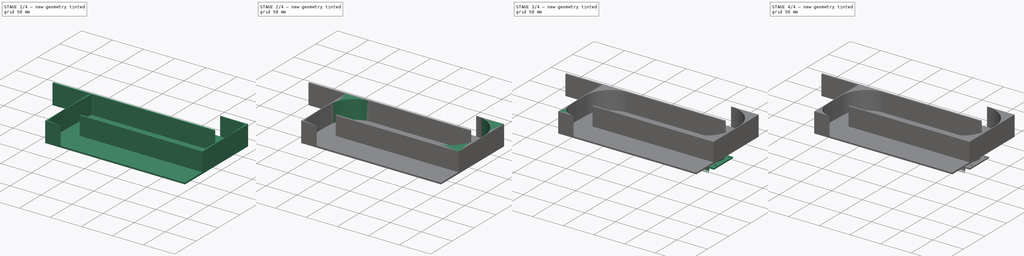
[diagram: build sequence overview — one tinted view per stage of 4, left to right]
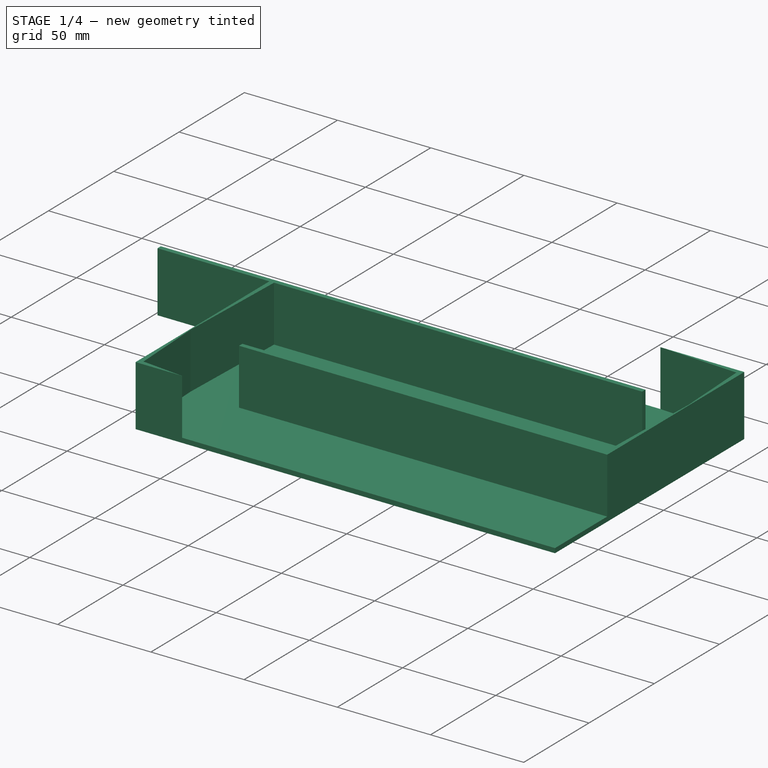
[diagram: stage 1 of 4 — iso view after this stage's code; geometry added in this stage tinted green]
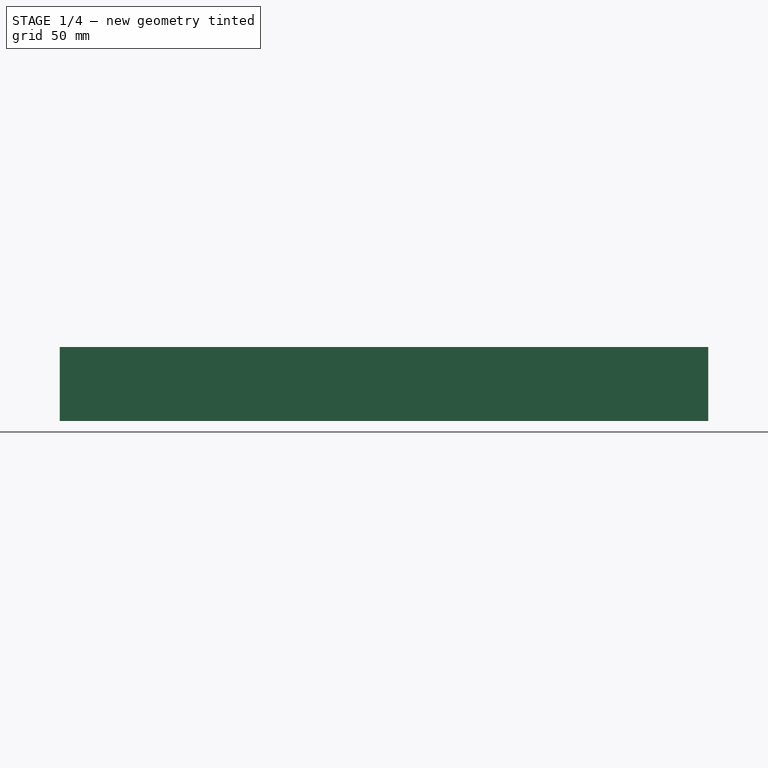
[diagram: stage 1 of 4 — front view after this stage's code; geometry added in this stage tinted green]
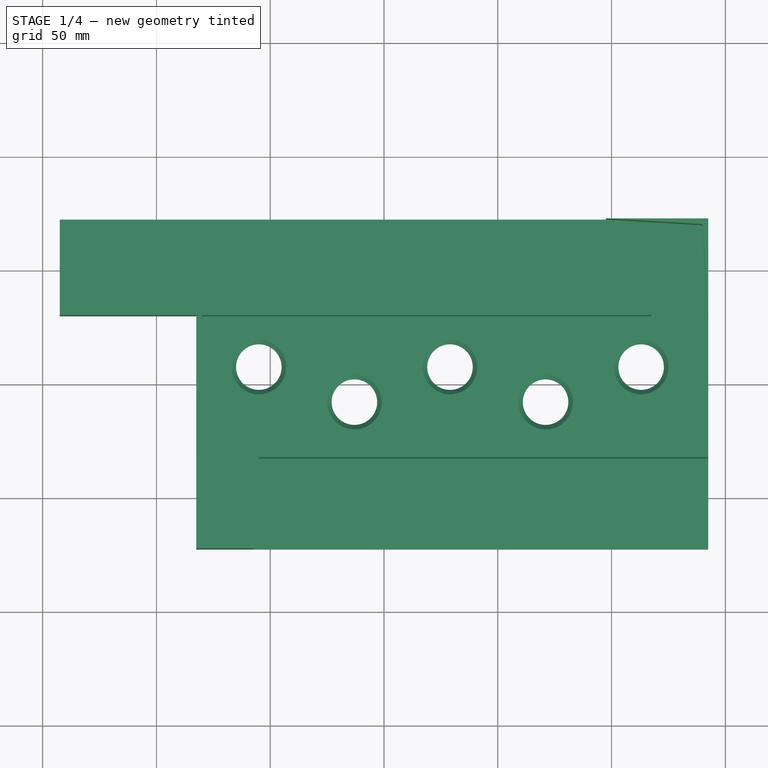
[diagram: stage 1 of 4 — top view after this stage's code; geometry added in this stage tinted green]
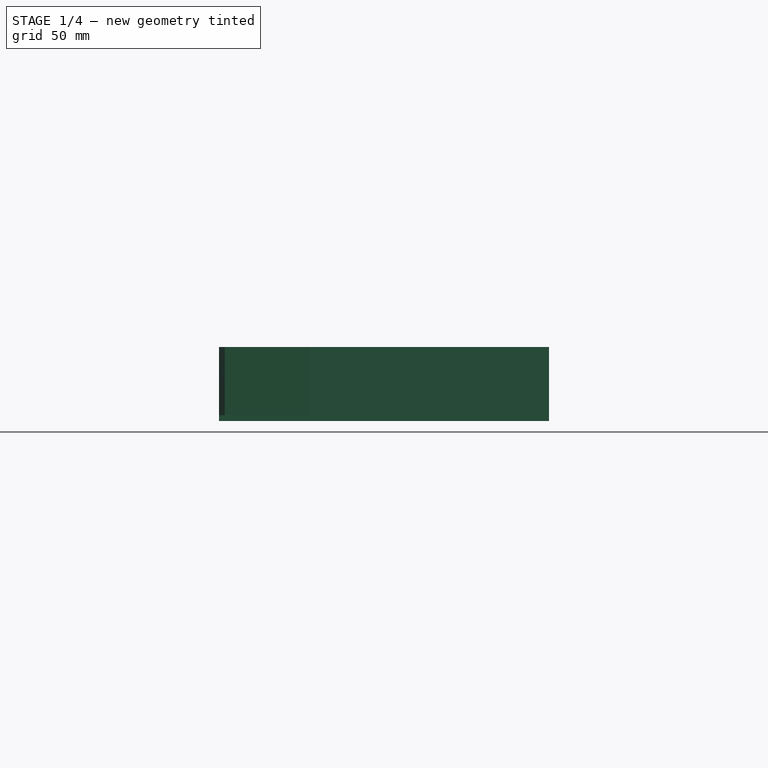
[diagram: stage 1 of 4 — right view after this stage's code; geometry added in this stage tinted green]
FCSTD DOCUMENT  (FreeCAD 0.16R6712 (Git))
Label: piso_intermedio
License: All rights reserved
LicenseURL: http://en.wikipedia.org/wiki/All_rights_reserved
objects: Part::Feature×10, Part::MultiFuse×5, App::FeaturePython×5, Part::Fillet×5, Sketcher::SketchObject×3, PartDesign::Pad×2, PartDesign::Pocket×1, Part::Chamfer×1
note: 30 computed .brp shape members not serialized (recipe doc carries the construction recipe); baked Part::Feature solids carry a one-line shape summary decoded from their .brp

FEATURE [Sketcher::SketchObject] Sketch
  sketch-geometry (6):
    g0: LineSegment StartX=-142.5 StartY=72.5 StartZ=0 EndX=142.5 EndY=72.5 EndZ=0
    g1: LineSegment StartX=142.5 StartY=72.5 StartZ=0 EndX=142.5 EndY=-72.5 EndZ=0
    g2: LineSegment StartX=142.5 StartY=-72.5 StartZ=0 EndX=-82.5 EndY=-72.5 EndZ=0
    g3: LineSegment StartX=-142.5 StartY=30 StartZ=0 EndX=-142.5 EndY=72.5 EndZ=0
    g4: LineSegment StartX=-142.5 StartY=30 StartZ=0 EndX=-82.5 EndY=30 EndZ=0
    g5: LineSegment StartX=-82.5 StartY=30 StartZ=0 EndX=-82.5 EndY=-72.5 EndZ=0
  constraints (18):
    c: Coincident(g0,g1)
    c: Coincident(g1,g2)
    c: Coincident(g3,g0)
    c: Horizontal(g0)
    c: Horizontal(g2)
    c: Vertical(g1)
    c: Vertical(g3)
    c: Horizontal(g4)
    c: Coincident(g5,g4)
    c: Vertical(g5)
    c: Coincident(g3,g4)
    c: Coincident(g2,g5)
    c: DistanceX(g2,g2) = 225
    c: DistanceY(g5,g5) = 102.5
    c: Symmetric(g0,g0,g-2)
    c: Symmetric(g0,g1,g-1)
    c: DistanceX(g4,g4) = 60
    c: DistanceY(g1,g1) = 145
FEATURE [PartDesign::Pad] Pad
  Length = 2.5
  Length2 = 100
  Sketch = -> Sketch
  Type = 0
FEATURE [App::FeaturePython] planeConstraint05  # a2plus constraint (typed FeaturePython)
  Object1 = Fusion004
  Object2 = Pad
  SubElement1 = Face7
  SubElement2 = Face8
  Type = plane
  directionConstraint = 1
  offset = 0
FEATURE [Sketcher::SketchObject] Sketch002
  Placement = pos=(0,0,2.5) rot=(0,0,1;0rad)
  Support = -> Pad [Face8]
  sketch-geometry (11):
    g0: Circle CenterX=-55 CenterY=7.7 CenterZ=0 NormalX=0 NormalY=0 NormalZ=1 Radius=10
    g1: Circle CenterX=-13 CenterY=-7.7 CenterZ=0 NormalX=0 NormalY=0 NormalZ=1 Radius=10
    g2: Circle CenterX=29 CenterY=7.7 CenterZ=0 NormalX=0 NormalY=0 NormalZ=1 Radius=10
    g3: Circle CenterX=71 CenterY=-7.7 CenterZ=0 NormalX=0 NormalY=0 NormalZ=1 Radius=10
    g4: Circle CenterX=113 CenterY=7.7 CenterZ=0 NormalX=0 NormalY=0 NormalZ=1 Radius=10
    g5: LineSegment [constr] StartX=-55 StartY=0 StartZ=0 EndX=113 EndY=0 EndZ=0
    g6: LineSegment [constr] StartX=113 StartY=7.7 StartZ=0 EndX=113 EndY=0 EndZ=0
    g7: LineSegment [constr] StartX=-13 StartY=-7.7 StartZ=0 EndX=-13 EndY=0 EndZ=0
    g8: LineSegment [constr] StartX=29 StartY=7.7 StartZ=0 EndX=29 EndY=0 EndZ=0
    g9: LineSegment [constr] StartX=71 StartY=-7.7 StartZ=0 EndX=71 EndY=0 EndZ=0
    g10: LineSegment [constr] StartX=-55 StartY=7.7 StartZ=0 EndX=-55 EndY=0 EndZ=0
  constraints (32):
    c: Radius(g4) = 10
    c: Equal(g3,g4)
    c: Equal(g4,g2)
    c: Equal(g2,g1)
    c: Equal(g1,g0)
    c: DistanceX(g3,g4) = 42
    c: DistanceX(g2,g3) = 42
    c: DistanceX(g0,g1) = 42
    c: DistanceX(g-1,g2) = 29
    c: DistanceX(g1,g2) = 42
    c: PointOnObject(g5,g-1)
    c: PointOnObject(g5,g-1)
    c: Coincident(g6,g4)
    c: Coincident(g6,g5)
    c: Vertical(g6)
    c: Coincident(g7,g1)
    c: PointOnObject(g7,g5)
    c: Vertical(g7)
    c: Coincident(g8,g2)
    c: PointOnObject(g8,g5)
    c: Vertical(g8)
    c: Coincident(g9,g3)
    c: PointOnObject(g9,g5)
    c: Vertical(g9)
    c: Equal(g6,g9)
    c: Equal(g9,g8)
    c: Equal(g8,g7)
    c: Coincident(g10,g0)
    c: Coincident(g10,g5)
    c: Vertical(g10)
    c: Equal(g10,g6)
    c: DistanceY(g6,g6) = 7.7
FEATURE [PartDesign::Pocket] Pocket
  Length = 2.5
  Sketch = -> Sketch002
  Type = 0
FEATURE [Sketcher::SketchObject] Sketch001
  Placement = pos=(0,0,2.5) rot=(0,0,1;0rad)
  Support = -> Pocket [Face5]
  sketch-geometry (22):
    g0: LineSegment StartX=-142.5 StartY=32.5 StartZ=0 EndX=117.5 EndY=32.5 EndZ=0
    g1: LineSegment StartX=117.5 StartY=32.5 StartZ=0 EndX=117.5 EndY=30 EndZ=0
    g2: LineSegment StartX=-80 StartY=30 StartZ=0 EndX=117.5 EndY=30 EndZ=0
    g3: LineSegment StartX=-80 StartY=-70 StartZ=0 EndX=-57.5 EndY=-72.5 EndZ=0
    g4: LineSegment StartX=-82.5 StartY=-72.5 StartZ=0 EndX=-57.5 EndY=-72.5 EndZ=0
    g5: LineSegment StartX=-55 StartY=-30 StartZ=0 EndX=140 EndY=-30 EndZ=0
    g6: LineSegment StartX=142.5 StartY=-32.5 StartZ=0 EndX=-55 EndY=-32.5 EndZ=0
    g7: LineSegment StartX=-55 StartY=-32.5 StartZ=0 EndX=-55 EndY=-30 EndZ=0
    g8: LineSegment StartX=142.5 StartY=-32.5 StartZ=0 EndX=142.5 EndY=30.5 EndZ=0
    g9: LineSegment StartX=97.5 StartY=72.5 StartZ=0 EndX=142.5 EndY=72.5 EndZ=0
    g10: LineSegment StartX=142.5 StartY=72.5 StartZ=0 EndX=142.5 EndY=30.5 EndZ=0
    g11: LineSegment StartX=140 StartY=70 StartZ=0 EndX=97.5 EndY=72.5 EndZ=0
    g12: LineSegment StartX=-80 StartY=-70 StartZ=0 EndX=-82 EndY=-31 EndZ=0
    g13: LineSegment StartX=-82 StartY=-31 StartZ=0 EndX=-80 EndY=30 EndZ=0
    g14: GeomPoint [constr] X=-82.5 Y=-31 Z=0
    g15: LineSegment StartX=-82.5 StartY=30 StartZ=0 EndX=-142.5 EndY=30 EndZ=0
    g16: LineSegment StartX=-142.5 StartY=30 StartZ=0 EndX=-142.5 EndY=32.5 EndZ=0
    g17: LineSegment StartX=-82.5 StartY=30 StartZ=0 EndX=-82.5 EndY=-72.5 EndZ=0
    g18: LineSegment StartX=140 StartY=-30 StartZ=0 EndX=142 EndY=30.5 EndZ=0
    g19: LineSegment StartX=140 StartY=70 StartZ=0 EndX=142 EndY=30.5 EndZ=0
    g20: LineSegment [constr] StartX=142 StartY=30.5 StartZ=0 EndX=142.5 EndY=30.5 EndZ=0
    g21: LineSegment [constr] StartX=-82.5 StartY=-31 StartZ=0 EndX=-82 EndY=-31 EndZ=0
  constraints (63):
    c: Horizontal(g0)
    c: Coincident(g1,g0)
    c: Coincident(g2,g1)
    c: Horizontal(g2)
    c: Vertical(g1)
    c: DistanceY(g1,g1) = 2.5
    c: Horizontal(g4)
    c: DistanceX(g4,g4) = 25
    c: DistanceX(g2,g-1) = 80
    c: DistanceY(g-1,g2) = 30
    c: DistanceY(g4,g3) = 2.5
    c: Coincident(g3,g4)
    c: Coincident(g6,g7)
    c: Coincident(g7,g5)
    c: Horizontal(g5)
    c: Horizontal(g6)
    c: Vertical(g7)
    c: Equal(g7,g1)
    c: DistanceY(g5,g-1) = 30
    c: DistanceX(g5,g-1) = 55
    c: DistanceX(g6,g6) = 197.5
    c: Coincident(g6,g8)
    c: DistanceX(g5,g6) = 2.5
    c: DistanceY(g8,g8) = 63
    c: Vertical(g8)
    c: Horizontal(g9)
    c: Coincident(g10,g9)
    c: Vertical(g10)
    c: DistanceY(g-1,g11) = 70
    c: DistanceX(g9,g9) = 45
    c: DistanceX(g11,g11) = 42.5
    c: Coincident(g11,g9)
    c: DistanceY(g11,g9) = 2.5
    c: Coincident(g10,g8)
    c: DistanceX(g4,g3) = 2.5
    c: Coincident(g12,g3)
    c: Coincident(g13,g12)
    c: Coincident(g13,g2)
    c: DistanceY(g4,g14) = 41.5
    c: DistanceX(g14,g12) = 0.5
    c: Horizontal(g15)
    c: Coincident(g16,g15)
    c: Vertical(g16)
    c: Equal(g16,g1)
    c: Coincident(g17,g15)
    c: Coincident(g17,g4)
    c: Vertical(g17)
    c: PointOnObject(g14,g17)
    c: DistanceX(g15,g2) = 2.5
    c: DistanceY(g4,g15) = 102.5
    c: Coincident(g16,g0)
    c: DistanceX(g0,g0) = 260
    c: Equal(g2,g6)
    c: Coincident(g18,g5)
    c: Coincident(g19,g11)
    c: Coincident(g18,g19)
    c: DistanceX(g18,g8) = 0.5
    c: Coincident(g20,g18)
    c: Coincident(g20,g8)
    c: Horizontal(g20)
    c: Coincident(g21,g14)
    c: Coincident(g21,g12)
    c: Horizontal(g21)
FEATURE [PartDesign::Pad] Pad001
  Length = 30
  Length2 = 100
  Sketch = -> Sketch001
  Type = 0
FEATURE [Part::Chamfer] Chamfer
  Base = -> Pad001
  Edges = 5 edges r=2: [Edge29,Edge31,Edge33,Edge35,Edge37]
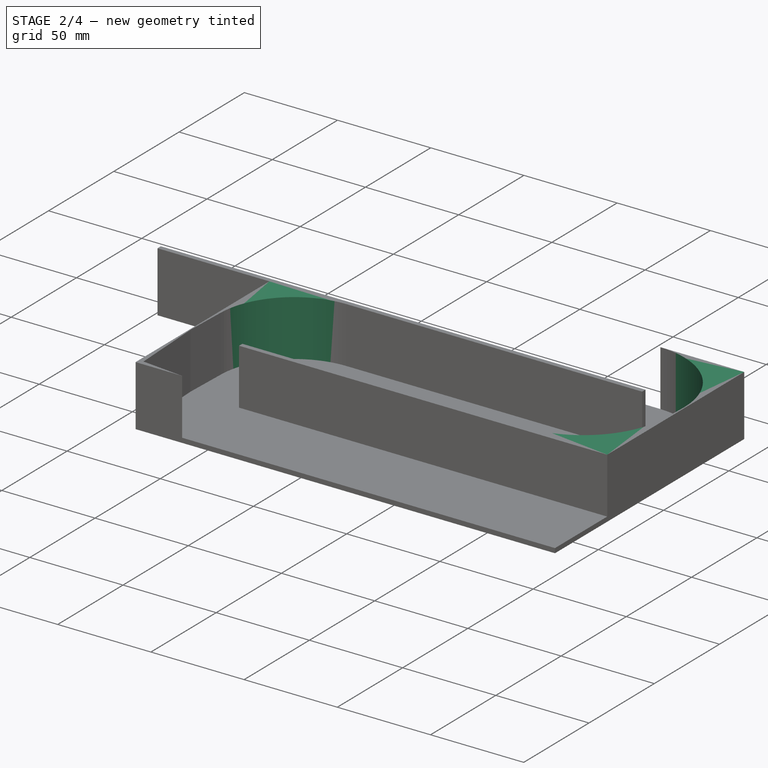
[diagram: stage 2 of 4 — iso view after this stage's code; geometry added in this stage tinted green]
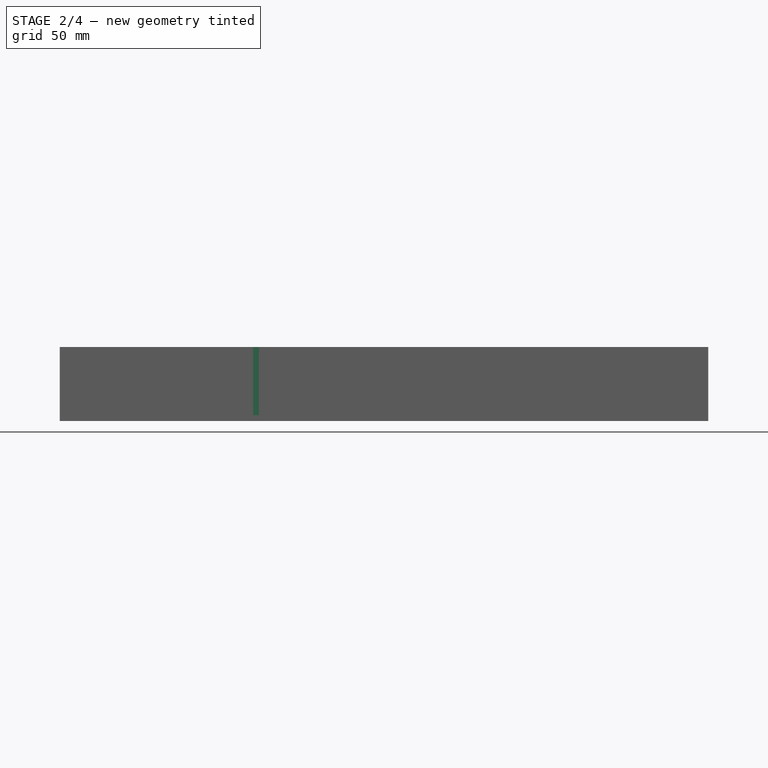
[diagram: stage 2 of 4 — front view after this stage's code; geometry added in this stage tinted green]
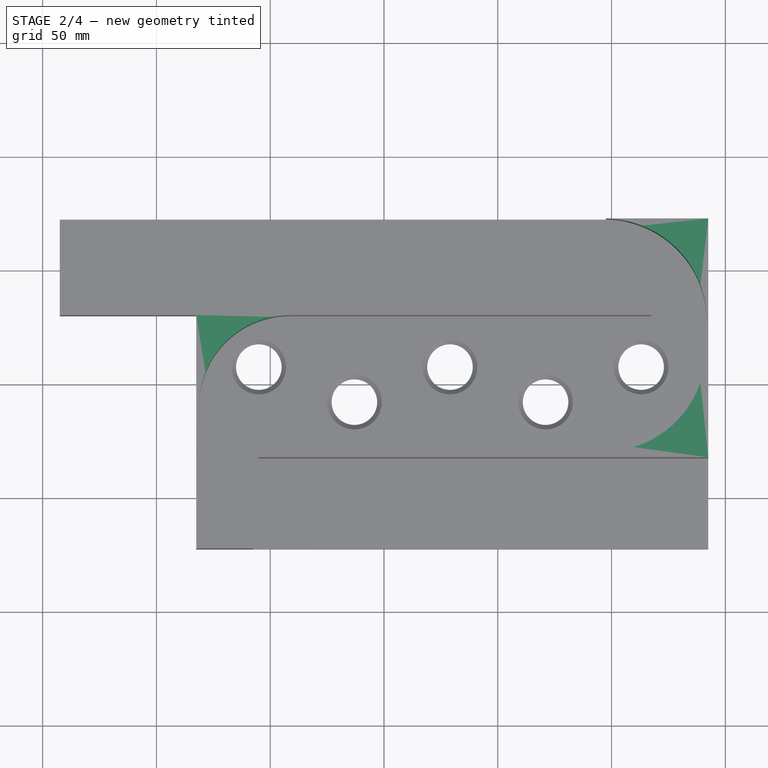
[diagram: stage 2 of 4 — top view after this stage's code; geometry added in this stage tinted green]
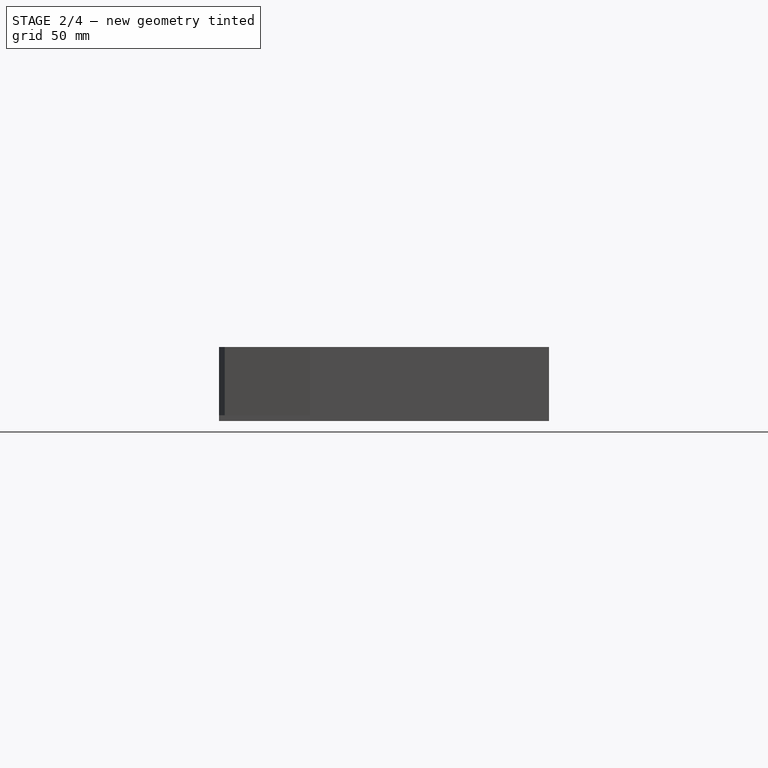
[diagram: stage 2 of 4 — right view after this stage's code; geometry added in this stage tinted green]
FEATURE [Part::Fillet] Fillet
  Base = -> Chamfer
  Edges = 1 edges r=45: [Edge57]
FEATURE [Part::Fillet] Fillet001
  Base = -> Fillet
  Edges = 1 edges r=45: [Edge31]
FEATURE [Part::Fillet] Fillet002
  Base = -> Fillet001
  Edges = 1 edges r=40: [Edge60]
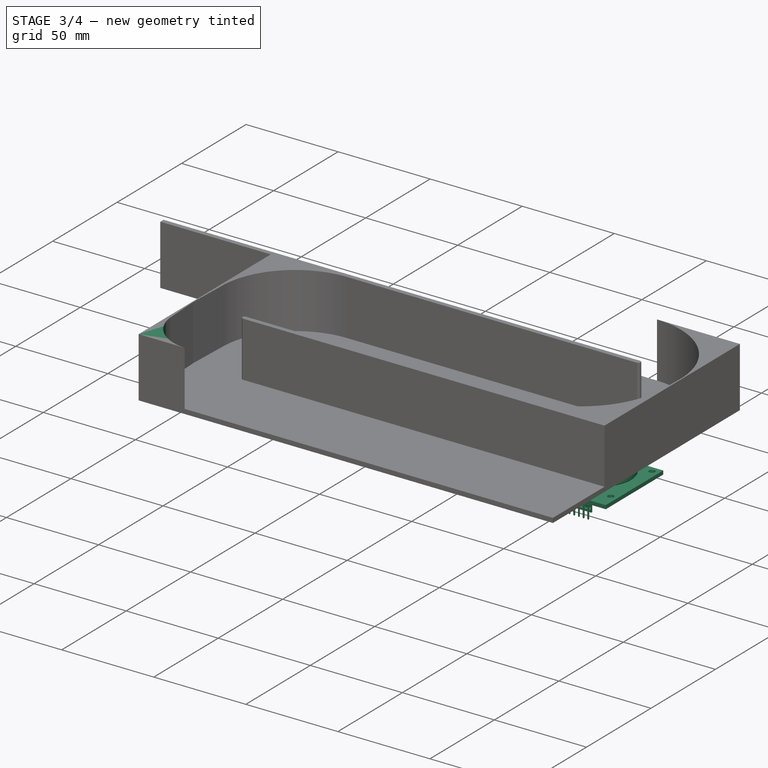
[diagram: stage 3 of 4 — iso view after this stage's code; geometry added in this stage tinted green]
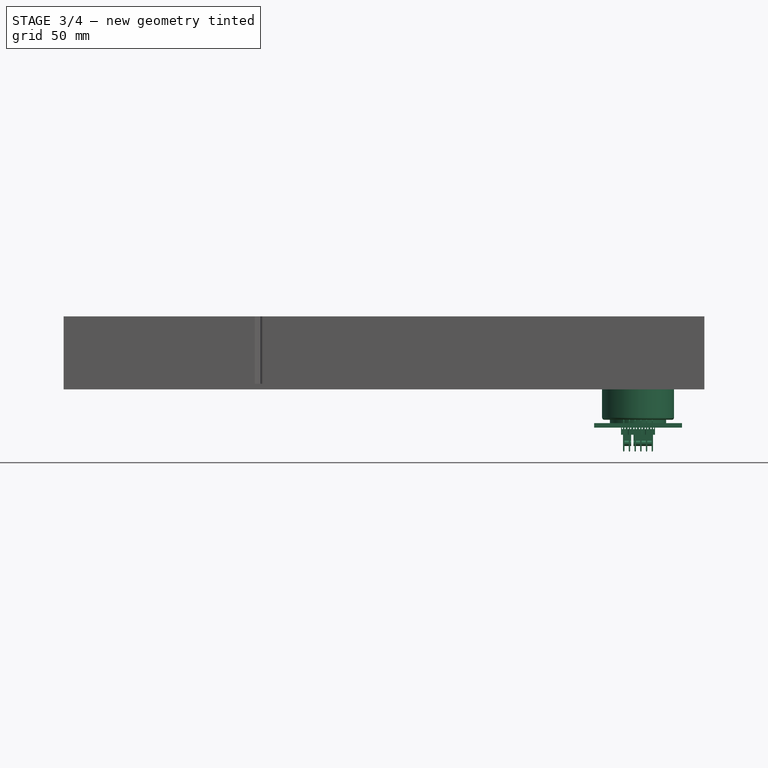
[diagram: stage 3 of 4 — front view after this stage's code; geometry added in this stage tinted green]
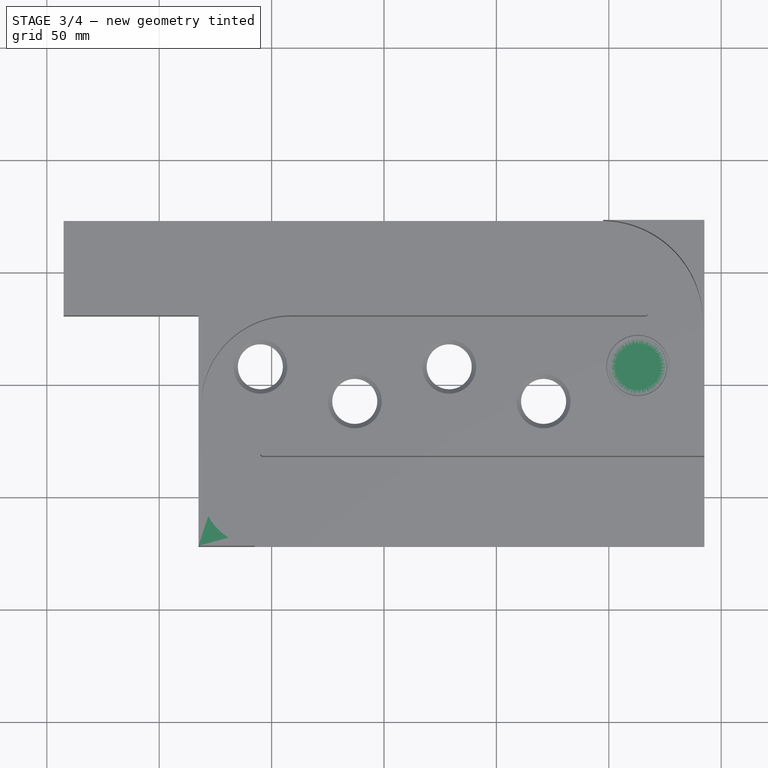
[diagram: stage 3 of 4 — top view after this stage's code; geometry added in this stage tinted green]
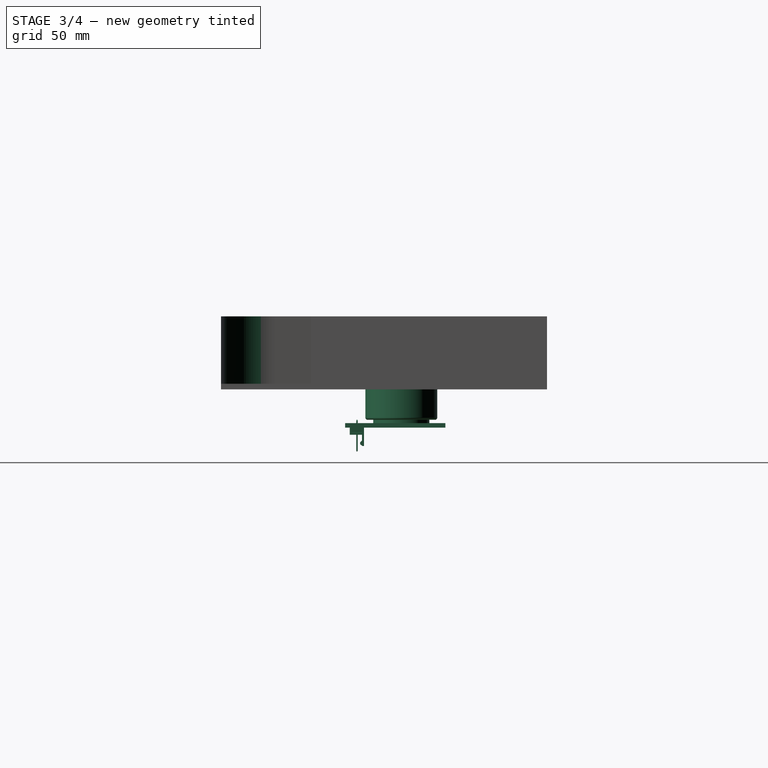
[diagram: stage 3 of 4 — right view after this stage's code; geometry added in this stage tinted green]
FEATURE [App::FeaturePython] planeConstraint04  # a2plus constraint (typed FeaturePython)
  Object1 = Fillet005
  Object2 = Fusion003
  SubElement1 = Face1
  SubElement2 = Face7
  Type = plane
  directionConstraint = 1
  offset = 0
FEATURE [Part::Feature] Part__Feature008  label="Fusion001"
  shape: bbox 44.6 x 39.1 x 30.18 mm, 214 faces (baked)
FEATURE [Part::Feature] Part__Feature009  label="Fusion013"
  shape: bbox 30.96 x 30.96 x 1.8 mm, 2 faces (baked)
FEATURE [Part::MultiFuse] Fusion004  label="sensor5"
  Placement = pos=(113,5,-17) rot=(0,0,-1;1.5708rad)
  Shapes = -> [Part__Feature008,Part__Feature009]
FEATURE [Part::Fillet] Fillet003
  Base = -> Fillet002
  Edges = 1 edges r=25: [Edge35]
FEATURE [Part::Fillet] Fillet004
  Base = -> Fillet003
  Edges = 4 edges r=1.2: [Edge40,Edge46,Edge50,Edge54]
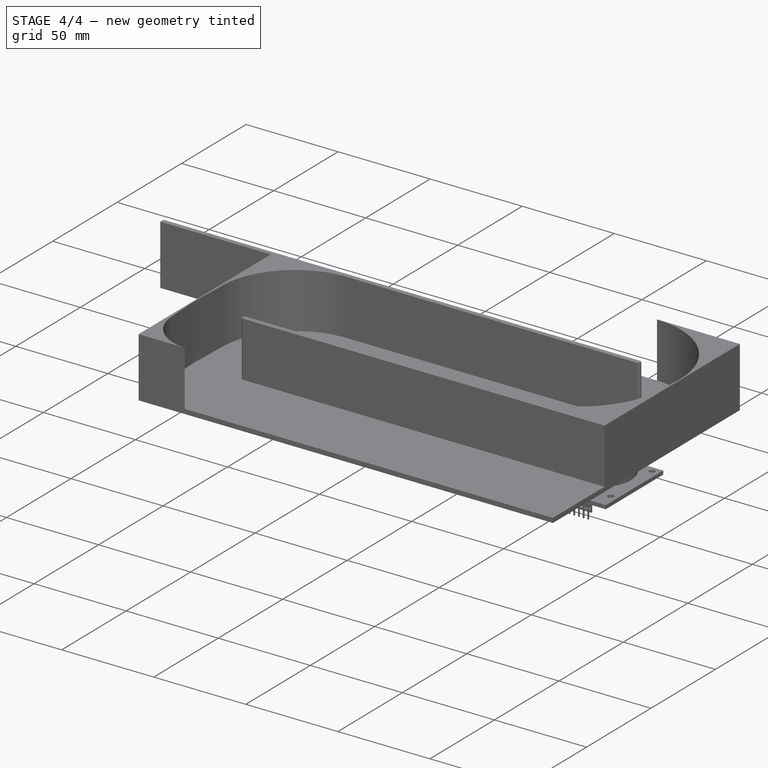
[diagram: stage 4 of 4 — iso view after this stage's code; geometry added in this stage tinted green]
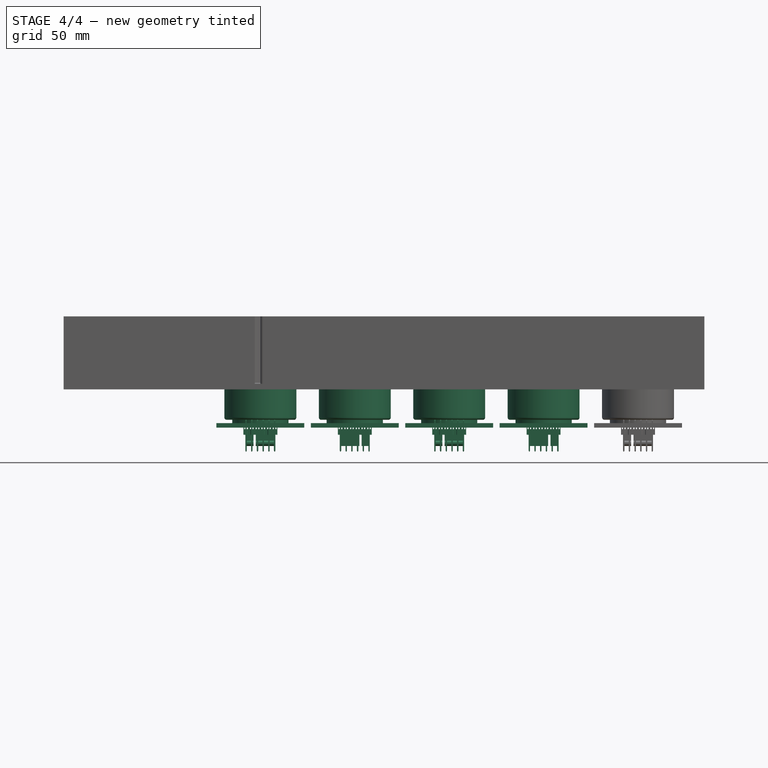
[diagram: stage 4 of 4 — front view after this stage's code; geometry added in this stage tinted green]
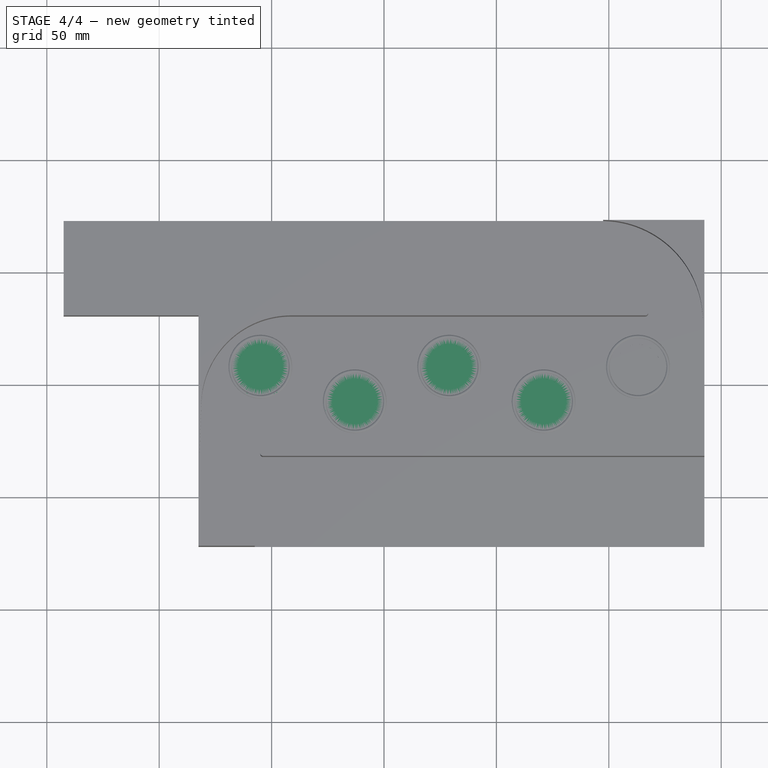
[diagram: stage 4 of 4 — top view after this stage's code; geometry added in this stage tinted green]
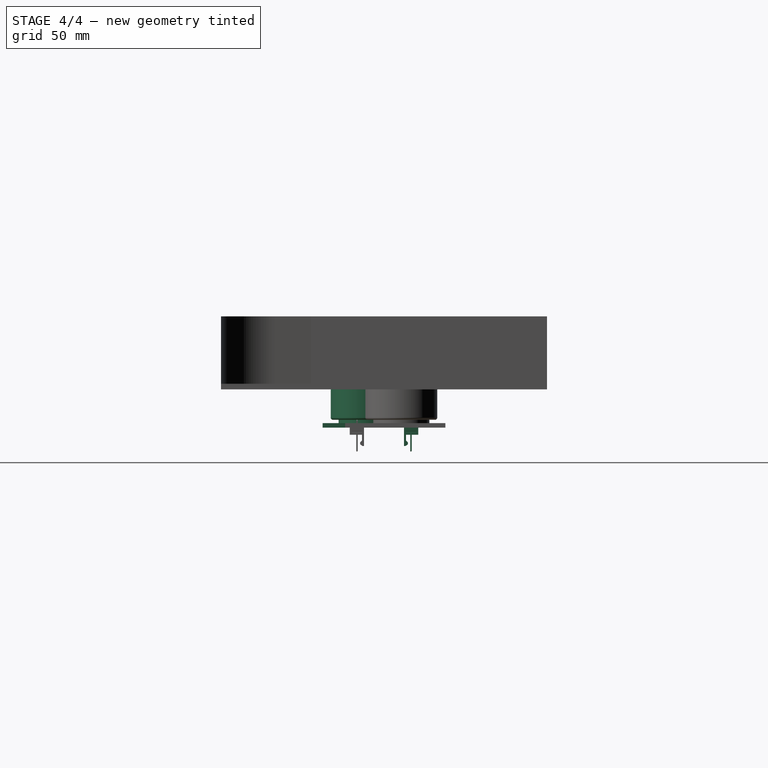
[diagram: stage 4 of 4 — right view after this stage's code; geometry added in this stage tinted green]
FEATURE [Part::Feature] Part__Feature  label="Fusion005"
  shape: bbox 44.6 x 39.1 x 30.18 mm, 214 faces (baked)
FEATURE [Part::Feature] Part__Feature001  label="Fusion006"
  shape: bbox 30.96 x 30.96 x 1.8 mm, 2 faces (baked)
FEATURE [Part::MultiFuse] Fusion  label="sensor1"
  Placement = pos=(-55,5,-17) rot=(0,0,-1;1.5708rad)
  Shapes = -> [Part__Feature001,Part__Feature]
FEATURE [App::FeaturePython] planeConstraint01  # a2plus constraint (typed FeaturePython)
  Object1 = Fillet005
  Object2 = Fusion
  SubElement1 = Face1
  SubElement2 = Face7
  Type = plane
  directionConstraint = 1
  offset = 0
FEATURE [Part::Feature] Part__Feature002  label="Fusion007"
  shape: bbox 44.6 x 39.1 x 30.18 mm, 214 faces (baked)
FEATURE [Part::Feature] Part__Feature003  label="Fusion008"
  shape: bbox 30.96 x 30.96 x 1.8 mm, 2 faces (baked)
FEATURE [Part::MultiFuse] Fusion001  label="sensor2"
  Placement = pos=(-13,-5,-17) rot=(0,0,1;1.5708rad)
  Shapes = -> [Part__Feature002,Part__Feature003]
FEATURE [App::FeaturePython] planeConstraint02  # a2plus constraint (typed FeaturePython)
  Object1 = Fillet005
  Object2 = Fusion001
  SubElement1 = Face1
  SubElement2 = Face7
  Type = plane
  directionConstraint = 1
  offset = 0
FEATURE [Part::Feature] Part__Feature004  label="Fusion009"
  shape: bbox 44.6 x 39.1 x 30.18 mm, 214 faces (baked)
FEATURE [Part::Feature] Part__Feature005  label="Fusion010"
  shape: bbox 30.96 x 30.96 x 1.8 mm, 2 faces (baked)
FEATURE [Part::MultiFuse] Fusion002  label="sensor3"
  Placement = pos=(29,5,-17) rot=(0,0,-1;1.5708rad)
  Shapes = -> [Part__Feature004,Part__Feature005]
FEATURE [App::FeaturePython] planeConstraint03  # a2plus constraint (typed FeaturePython)
  Object1 = Fillet005
  Object2 = Fusion002
  SubElement1 = Face1
  SubElement2 = Face7
  Type = plane
  directionConstraint = 1
  offset = 0
FEATURE [Part::Feature] Part__Feature006  label="Fusion011"
  shape: bbox 44.6 x 39.1 x 30.18 mm, 214 faces (baked)
FEATURE [Part::Feature] Part__Feature007  label="Fusion012"
  shape: bbox 30.96 x 30.96 x 1.8 mm, 2 faces (baked)
FEATURE [Part::MultiFuse] Fusion003  label="sensor4"
  Placement = pos=(71,-5,-17) rot=(0,0,1;1.5708rad)
  Shapes = -> [Part__Feature006,Part__Feature007]
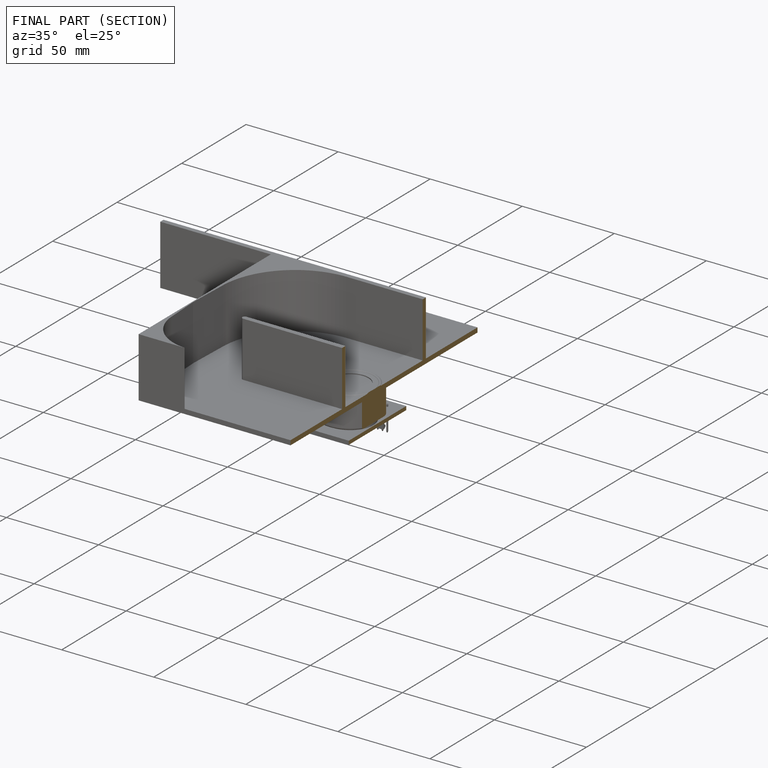
[diagram: finished part — half-section view (interior)]
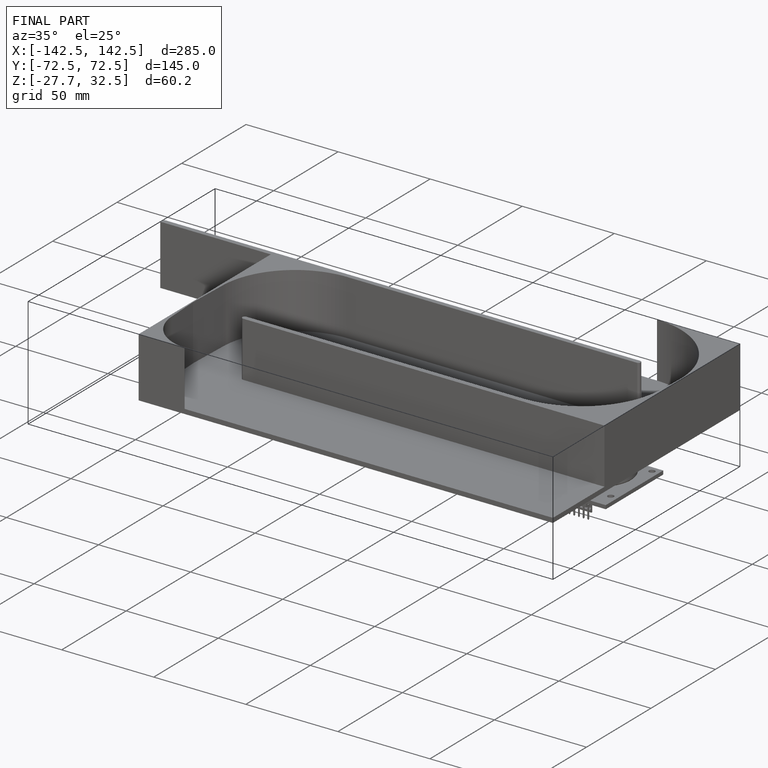
[diagram: finished part — iso view with bounding-box wireframe]
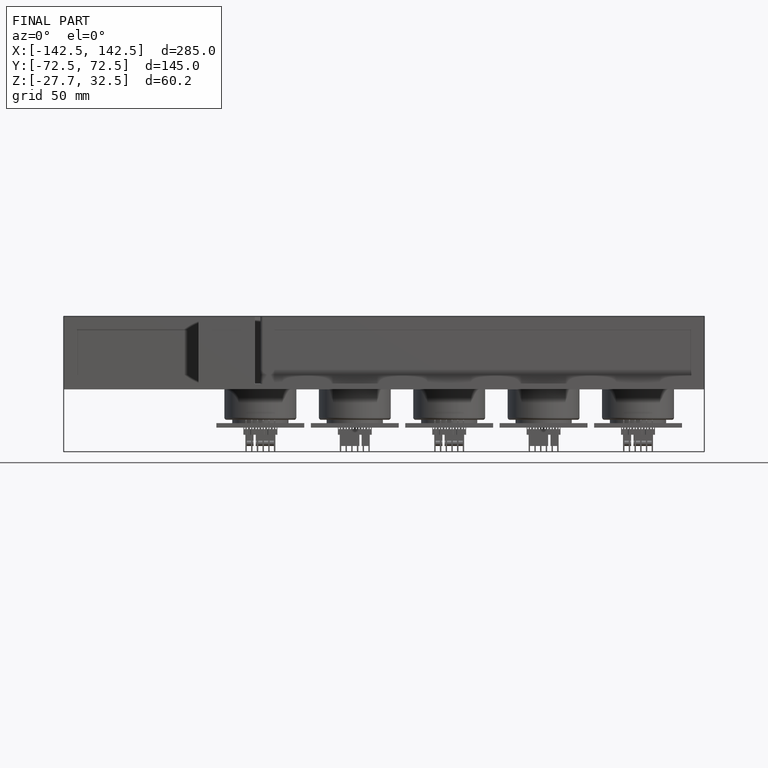
[diagram: finished part — front view with bounding-box wireframe]
